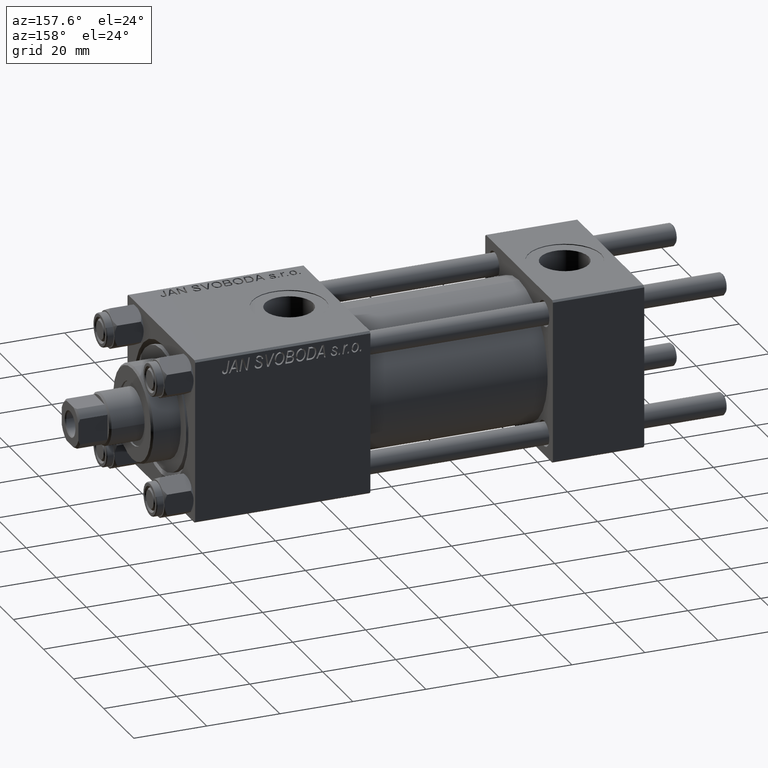
[diagram: clean part render]
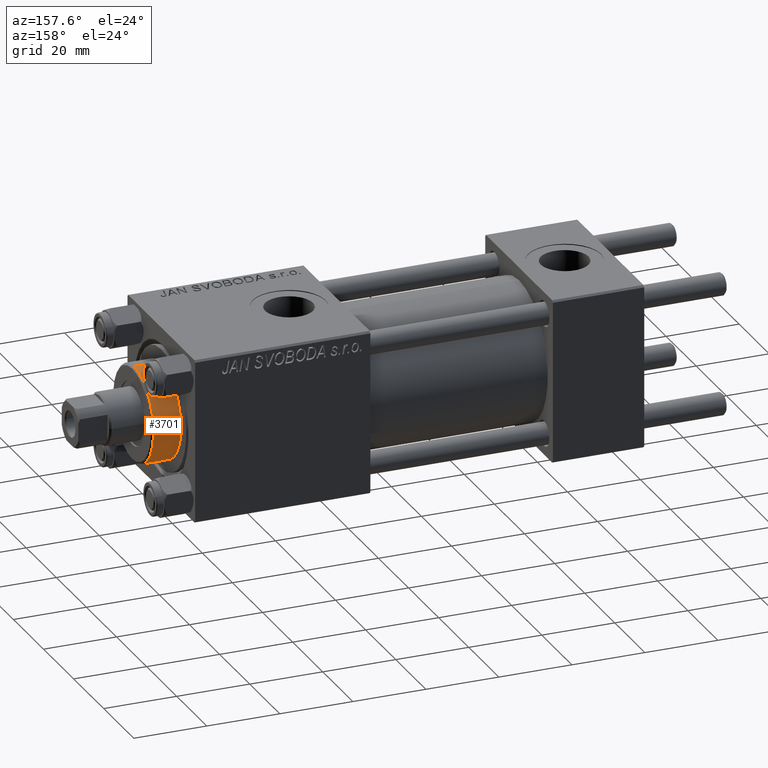
[diagram: same view with one face highlighted and labeled with its STEP entity id]
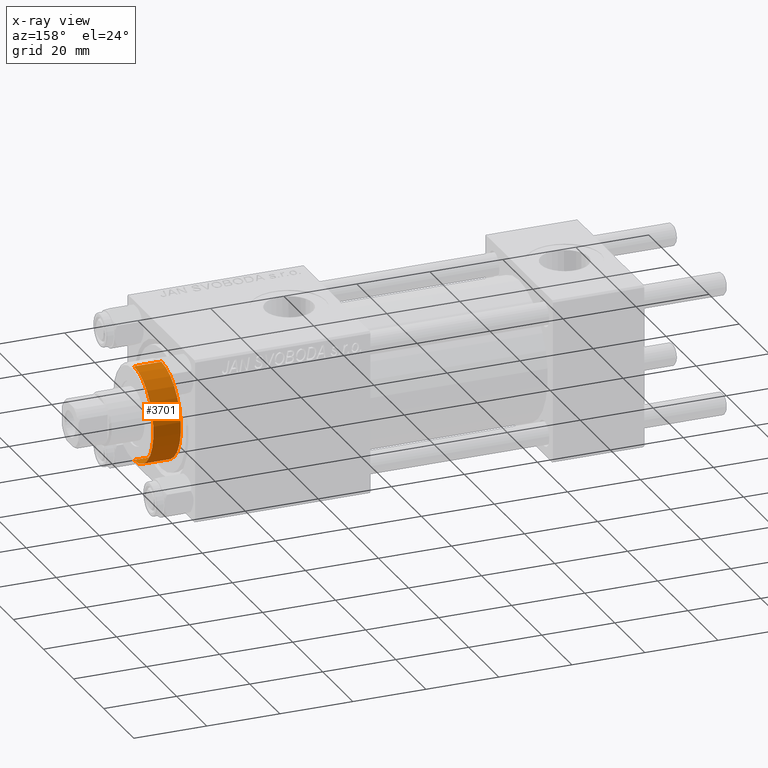
[diagram: x-ray of the same camera — body ghosted, the highlighted face saturated]
A machine part, auxiliary view. The second image highlights one B-rep face of the part: STEP entity #3701.
The next image is the same camera in x-ray: the body ghosted, the highlighted face saturated — about 0% of this face is hidden behind the body in this view.
In plain terms, the highlighted cylindrical surface (partial cylindrical patch) has radius 13 mm, axis along (-1, -0, 0).
Its self-contained STEP definition (entity closure, byte-faithful):
#1274 = AXIS2_PLACEMENT_3D ( 'NONE', #30317, #49714, #25853 ) ;
#1820 = ORIENTED_EDGE ( 'NONE', *, *, #34574, .T. ) ;
#3701 = ADVANCED_FACE ( 'NONE', ( #22191 ), #6684, .T. ) ;
#6620 = VERTEX_POINT ( 'NONE', #19502 ) ;
#6684 = CYLINDRICAL_SURFACE ( 'NONE', #1274, 13.00000000000000178 ) ;
#7079 = DIRECTION ( 'NONE',  ( 0.000000000000000000, 0.000000000000000000, -1.000000000000000000 ) ) ;
#7339 = CARTESIAN_POINT ( 'NONE',  ( 0.000000000000000000, 0.000000000000000000, 36.20000000000000995 ) ) ;
#7785 = AXIS2_PLACEMENT_3D ( 'NONE', #8947, #44123, #12361 ) ;
#8803 = ORIENTED_EDGE ( 'NONE', *, *, #32432, .T. ) ;
#8947 = CARTESIAN_POINT ( 'NONE',  ( 0.000000000000000000, 0.000000000000000000, 28.69999999999999929 ) ) ;
#12361 = DIRECTION ( 'NONE',  ( 1.000000000000000000, 0.000000000000000000, 0.000000000000000000 ) ) ;
#12722 = LINE ( 'NONE', #40809, #43068 ) ;
#13230 = DIRECTION ( 'NONE',  ( -0.000000000000000000, -0.000000000000000000, -1.000000000000000000 ) ) ;
#13263 = VECTOR ( 'NONE', #26249, 1000.000000000000000 ) ;
#16720 = VERTEX_POINT ( 'NONE', #29018 ) ;
#17141 = CARTESIAN_POINT ( 'NONE',  ( 13.00000000000000178, 1.592040838891559293E-15, 28.69999999999999929 ) ) ;
#17512 = ORIENTED_EDGE ( 'NONE', *, *, #23194, .T. ) ;
#18690 = CIRCLE ( 'NONE', #7785, 13.00000000000000178 ) ;
#19502 = CARTESIAN_POINT ( 'NONE',  ( -13.00000000000000178, 0.000000000000000000, 28.69999999999999929 ) ) ;
#22191 = FACE_OUTER_BOUND ( 'NONE', #28011, .T. ) ;
#22882 = VERTEX_POINT ( 'NONE', #17141 ) ;
#23194 = EDGE_CURVE ( 'NONE', #30398, #22882, #50634, .T. ) ;
#25195 = AXIS2_PLACEMENT_3D ( 'NONE', #7339, #7079, #43289 ) ;
#25853 = DIRECTION ( 'NONE',  ( -1.000000000000000000, 0.000000000000000000, 0.000000000000000000 ) ) ;
#26249 = DIRECTION ( 'NONE',  ( -0.000000000000000000, -0.000000000000000000, -1.000000000000000000 ) ) ;
#27466 = CARTESIAN_POINT ( 'NONE',  ( 13.00000000000000178, 1.592040838891559293E-15, 36.20000000000000995 ) ) ;
#28011 = EDGE_LOOP ( 'NONE', ( #8803, #17512, #1820, #30361 ) ) ;
#29018 = CARTESIAN_POINT ( 'NONE',  ( -13.00000000000000178, 0.000000000000000000, 36.20000000000000995 ) ) ;
#30317 = CARTESIAN_POINT ( 'NONE',  ( 0.000000000000000000, 0.000000000000000000, 36.69999999999999574 ) ) ;
#30361 = ORIENTED_EDGE ( 'NONE', *, *, #50580, .F. ) ;
#30398 = VERTEX_POINT ( 'NONE', #27466 ) ;
#32432 = EDGE_CURVE ( 'NONE', #16720, #30398, #34464, .T. ) ;
#34464 = CIRCLE ( 'NONE', #25195, 13.00000000000000178 ) ;
#34574 = EDGE_CURVE ( 'NONE', #22882, #6620, #18690, .T. ) ;
#40809 = CARTESIAN_POINT ( 'NONE',  ( -13.00000000000000178, 0.000000000000000000, 36.69999999999999574 ) ) ;
#41459 = CARTESIAN_POINT ( 'NONE',  ( 13.00000000000000178, 1.592040838891559293E-15, 36.69999999999999574 ) ) ;
#43068 = VECTOR ( 'NONE', #13230, 1000.000000000000000 ) ;
#43289 = DIRECTION ( 'NONE',  ( 1.000000000000000000, 0.000000000000000000, 0.000000000000000000 ) ) ;
#44123 = DIRECTION ( 'NONE',  ( 0.000000000000000000, 0.000000000000000000, 1.000000000000000000 ) ) ;
#49714 = DIRECTION ( 'NONE',  ( -0.000000000000000000, -0.000000000000000000, -1.000000000000000000 ) ) ;
#50580 = EDGE_CURVE ( 'NONE', #16720, #6620, #12722, .T. ) ;
#50634 = LINE ( 'NONE', #41459, #13263 ) ;